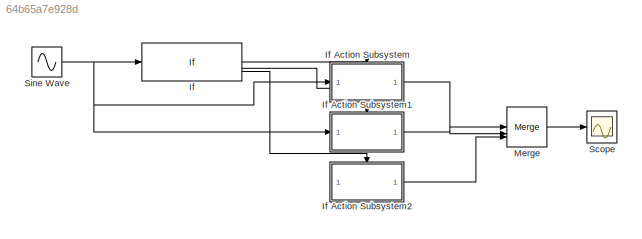
MODEL slx_64b65a7e928d
KIND model
CONFIG AbsTol = auto
CONFIG EnableMultiTasking = off
CONFIG FixedStep = auto
CONFIG MaxStep = auto
CONFIG MinStep = auto
CONFIG RelTol = 1e-3
CONFIG SampleTimeConstraint = Unconstrained
CONFIG SolverName = VariableStepAuto
CONFIG StartTime = 0.0
CONFIG StopTime = 10.0
BLOCK [If] If
  ElseIfExpressions = u1 < 0
  IfExpression = u1 > 0.5
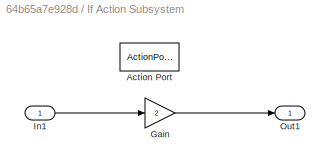
BLOCK [SubSystem] If Action Subsystem
  TreatAsAtomicUnit = on
BLOCK [ActionPort] If Action Subsystem/Action Port
  ActionPortLabel = if(u1 > 0.5)
BLOCK [Gain] If Action Subsystem/Gain
  Gain = 2
BLOCK [Inport] If Action Subsystem/In1
BLOCK [Outport] If Action Subsystem/Out1
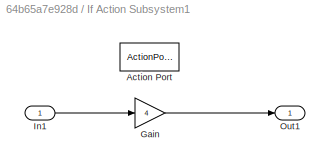
BLOCK [SubSystem] If Action Subsystem1
  TreatAsAtomicUnit = on
BLOCK [ActionPort] If Action Subsystem1/Action Port
  ActionPortLabel = elseif(u1 < 0)
BLOCK [Gain] If Action Subsystem1/Gain
  Gain = 4
BLOCK [Inport] If Action Subsystem1/In1
BLOCK [Outport] If Action Subsystem1/Out1
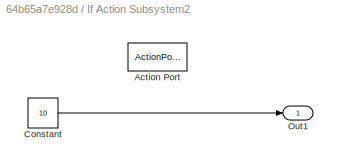
BLOCK [SubSystem] If Action Subsystem2
  TreatAsAtomicUnit = on
BLOCK [ActionPort] If Action Subsystem2/Action Port
  ActionPortLabel = else
BLOCK [Constant] If Action Subsystem2/Constant
  Value = 10
BLOCK [Outport] If Action Subsystem2/Out1
BLOCK [Merge] Merge
  Inputs = 3
BLOCK [Scope] Scope
  Floating = off
  NumInputPorts = 1
  ScopeSpecificationString = Simulink.scopes.TimeScopeBlockCfg('CurrentConfiguration', extmgr.ConfigurationSet(extmgr.Configuration('Core','General UI',true),extmgr.Configuration('Core','Source UI',true),extmgr.Configuration('Sources','WiredSimulink',true),extmgr.Configuration('Visuals','Time Domain',true),extmgr.Configuration('Tools','Plot Navigation',true),extmgr.Configuration('Tools','Measurements',true)),'Version','2024b'...<+1ch>
BLOCK [Sin] Sine Wave
  SampleTime = 0
LINE If Action Subsystem/Gain:1 -> If Action Subsystem/Out1:1
LINE If Action Subsystem/In1:1 -> If Action Subsystem/Gain:1
LINE If Action Subsystem1/Gain:1 -> If Action Subsystem1/Out1:1
LINE If Action Subsystem1/In1:1 -> If Action Subsystem1/Gain:1
LINE If Action Subsystem1:1 -> Merge:2
LINE If Action Subsystem2/Constant:1 -> If Action Subsystem2/Out1:1
LINE If Action Subsystem2:1 -> Merge:3
LINE If Action Subsystem:1 -> Merge:1
LINE If:1 -> If Action Subsystem:ifaction
LINE If:2 -> If Action Subsystem1:ifaction
LINE If:3 -> If Action Subsystem2:ifaction
LINE Merge:1 -> Scope:1
NET Sine Wave:1 -> If Action Subsystem1:1, If Action Subsystem:1, If:1
note: NET lines group one-source signal fan-out (src -> all destinations, sorted); 1:1 wires keep LINE
